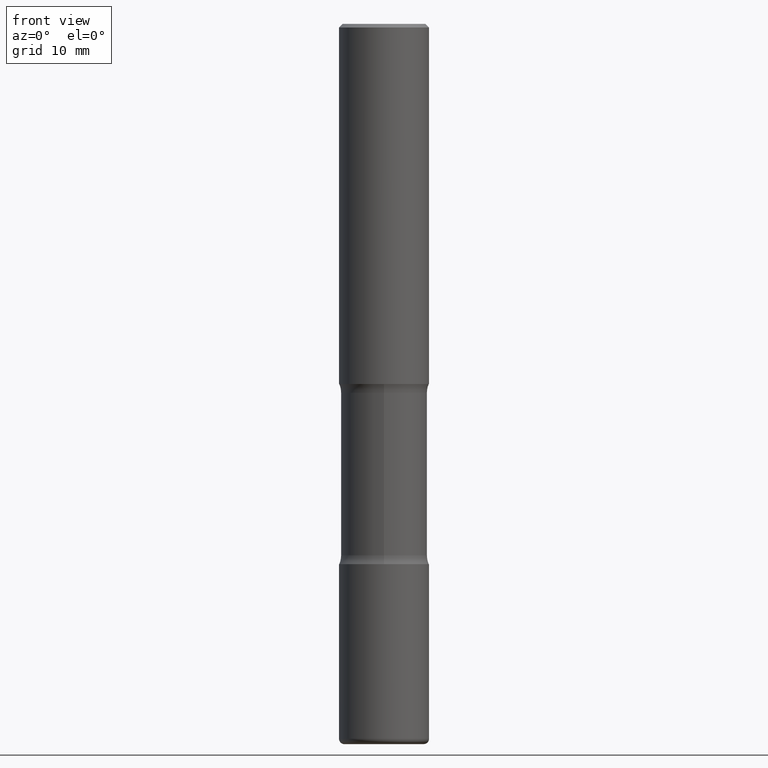
[diagram: clean part render]
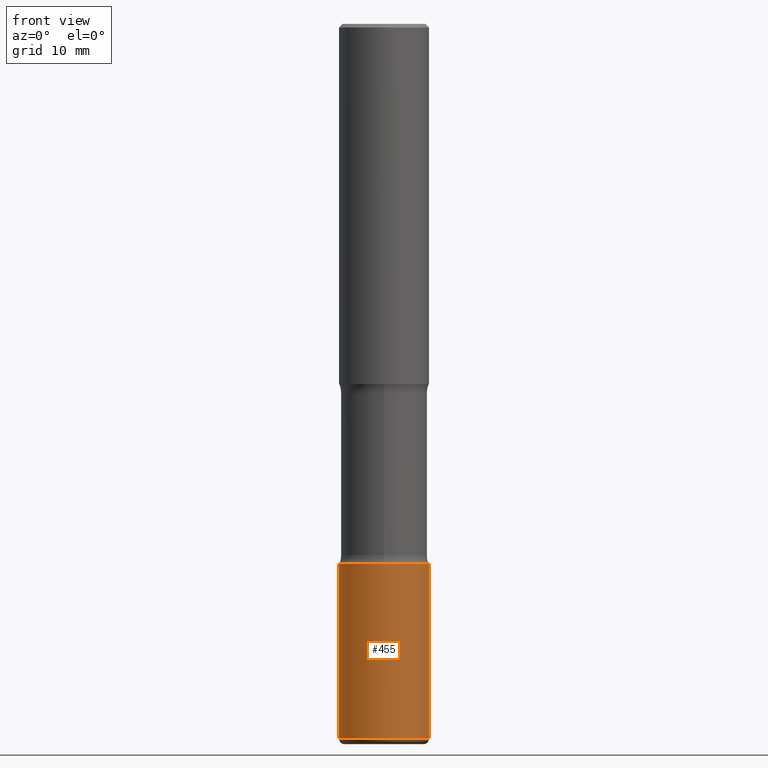
[diagram: same view with one face highlighted and labeled with its STEP entity id]
A machine part, front view. The second image highlights one B-rep face of the part: STEP entity #455.
In plain terms, the highlighted cylindrical surface (partial cylindrical patch) has radius 6.35 mm, axis along (-0, 0, 1).
Its self-contained STEP definition (entity closure, byte-faithful):
#52 = DIRECTION ( 'NONE',  ( -2.445468806185136877E-29, 3.491481338843145188E-15, 1.000000000000000000 ) ) ;
#77 = CARTESIAN_POINT ( 'NONE',  ( 7.336406418555409790E-29, -1.047444401652943635E-14, -3.000000000000000444 ) ) ;
#116 = CARTESIAN_POINT ( 'NONE',  ( 0.2500000000000002220, -1.222018468595100461E-14, -3.000000000000000444 ) ) ;
#126 = ORIENTED_EDGE ( 'NONE', *, *, #501, .T. ) ;
#136 = CARTESIAN_POINT ( 'NONE',  ( -0.2500000000000003886, -1.208482407580703534E-14, -3.969999999999999307 ) ) ;
#147 = DIRECTION ( 'NONE',  ( 1.000000000000000000, -6.982962677686270655E-15, 0.000000000000000000 ) ) ;
#161 = VERTEX_POINT ( 'NONE', #316 ) ;
#178 = CARTESIAN_POINT ( 'NONE',  ( 9.708511160554990630E-29, -1.386118091520728581E-14, -3.969999999999999307 ) ) ;
#187 = ORIENTED_EDGE ( 'NONE', *, *, #387, .F. ) ;
#189 = VERTEX_POINT ( 'NONE', #136 ) ;
#196 = CARTESIAN_POINT ( 'NONE',  ( 0.2500000000000003886, -1.560692158462885722E-14, -3.969999999999999307 ) ) ;
#229 = VECTOR ( 'NONE', #52, 39.37007874015748143 ) ;
#241 = DIRECTION ( 'NONE',  ( 1.000000000000000000, -6.982962677686264344E-15, 0.000000000000000000 ) ) ;
#252 = CYLINDRICAL_SURFACE ( 'NONE', #535, 0.2500000000000002776 ) ;
#260 = EDGE_CURVE ( 'NONE', #189, #292, #446, .T. ) ;
#273 = DIRECTION ( 'NONE',  ( -2.445468806185136597E-29, 3.491481338843145583E-15, 1.000000000000000000 ) ) ;
#285 = DIRECTION ( 'NONE',  ( -2.445468806185136597E-29, 3.491481338843145583E-15, 1.000000000000000000 ) ) ;
#292 = VERTEX_POINT ( 'NONE', #196 ) ;
#315 = ORIENTED_EDGE ( 'NONE', *, *, #260, .T. ) ;
#316 = CARTESIAN_POINT ( 'NONE',  ( -0.2500000000000002220, -1.039145562646810746E-14, -3.000000000000000444 ) ) ;
#326 = VERTEX_POINT ( 'NONE', #116 ) ;
#329 = CARTESIAN_POINT ( 'NONE',  ( 0.2500000000000002776, -1.745740669421568650E-15, 1.219044193948985350E-29 ) ) ;
#340 = AXIS2_PLACEMENT_3D ( 'NONE', #77, #426, #241 ) ;
#386 = FACE_OUTER_BOUND ( 'NONE', #416, .T. ) ;
#387 = EDGE_CURVE ( 'NONE', #161, #326, #419, .T. ) ;
#405 = CARTESIAN_POINT ( 'NONE',  ( 0.000000000000000000, 0.000000000000000000, 0.000000000000000000 ) ) ;
#408 = AXIS2_PLACEMENT_3D ( 'NONE', #178, #273, #147 ) ;
#416 = EDGE_LOOP ( 'NONE', ( #459, #315, #126, #187 ) ) ;
#419 = CIRCLE ( 'NONE', #340, 0.2500000000000002220 ) ;
#423 = DIRECTION ( 'NONE',  ( 1.000000000000000000, -6.982962677686266711E-15, 4.876176775795935793E-29 ) ) ;
#426 = DIRECTION ( 'NONE',  ( -2.445468806185136597E-29, 3.491481338843145583E-15, 1.000000000000000000 ) ) ;
#446 = CIRCLE ( 'NONE', #408, 0.2500000000000002776 ) ;
#450 = LINE ( 'NONE', #329, #482 ) ;
#452 = CARTESIAN_POINT ( 'NONE',  ( -0.2500000000000002776, 1.776356839400252437E-15, -1.229733772563727707E-29 ) ) ;
#455 = ADVANCED_FACE ( 'NONE', ( #386 ), #252, .T. ) ;
#459 = ORIENTED_EDGE ( 'NONE', *, *, #512, .F. ) ;
#482 = VECTOR ( 'NONE', #553, 39.37007874015748143 ) ;
#501 = EDGE_CURVE ( 'NONE', #292, #326, #450, .T. ) ;
#512 = EDGE_CURVE ( 'NONE', #189, #161, #560, .T. ) ;
#535 = AXIS2_PLACEMENT_3D ( 'NONE', #405, #285, #423 ) ;
#553 = DIRECTION ( 'NONE',  ( -2.445468806185136877E-29, 3.491481338843145188E-15, 1.000000000000000000 ) ) ;
#560 = LINE ( 'NONE', #452, #229 ) ;